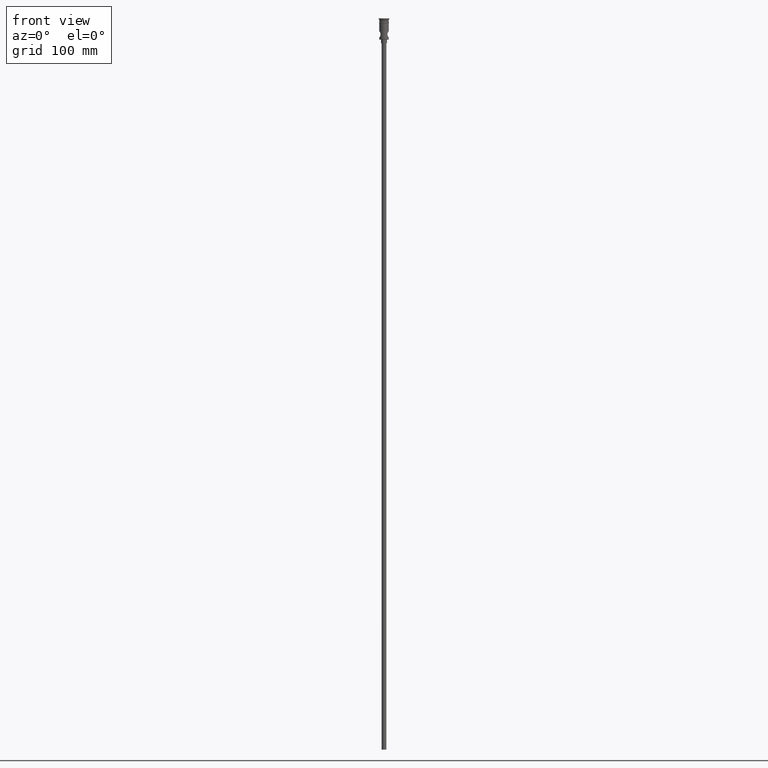
[diagram: clean part render]
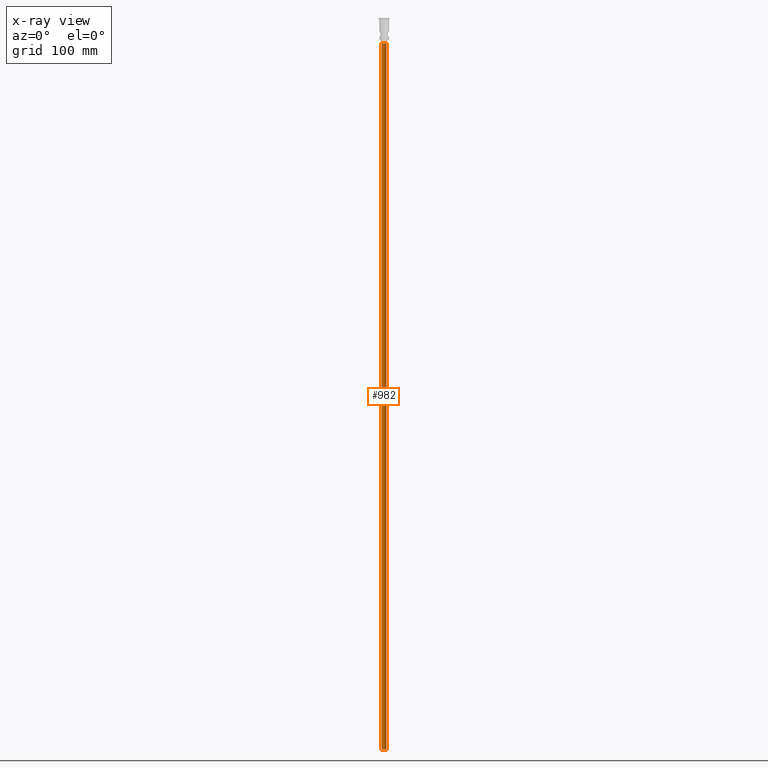
[diagram: x-ray — body ghosted, one internal face saturated and labeled with its STEP entity id]
A machine part, front view, then the same camera in x-ray: the body is ghosted and one INTERNAL B-rep face — a face not visible from any outside direction — is saturated and labeled: STEP entity #982.
In plain terms, the highlighted cylindrical surface (edge-blend (fillet) strip) has radius 2 mm, axis along (-0, -0, 1).
Its self-contained STEP definition (entity closure, byte-faithful):
#26 = LINE ( 'NONE', #352, #1029 ) ;
#47 = LINE ( 'NONE', #478, #167 ) ;
#67 = CARTESIAN_POINT ( 'NONE',  ( 2.000000000000000000, 0.000000000000000000, -618.0000000000000000 ) ) ;
#107 = ORIENTED_EDGE ( 'NONE', *, *, #710, .F. ) ;
#151 = VERTEX_POINT ( 'NONE', #661 ) ;
#167 = VECTOR ( 'NONE', #294, 1000.000000000000000 ) ;
#209 = EDGE_CURVE ( 'NONE', #938, #151, #715, .T. ) ;
#236 = VERTEX_POINT ( 'NONE', #630 ) ;
#275 = EDGE_CURVE ( 'NONE', #236, #938, #26, .T. ) ;
#282 = AXIS2_PLACEMENT_3D ( 'NONE', #764, #994, #1111 ) ;
#294 = DIRECTION ( 'NONE',  ( -0.000000000000000000, -0.000000000000000000, 1.000000000000000000 ) ) ;
#317 = CARTESIAN_POINT ( 'NONE',  ( 0.000000000000000000, 0.000000000000000000, -618.0000000000000000 ) ) ;
#352 = CARTESIAN_POINT ( 'NONE',  ( -2.000000000000000000, 2.449293598294706414E-16, -618.0000000000000000 ) ) ;
#391 = DIRECTION ( 'NONE',  ( -0.000000000000000000, -0.000000000000000000, 1.000000000000000000 ) ) ;
#395 = CARTESIAN_POINT ( 'NONE',  ( -2.000000000000000000, 2.449293598294706414E-16, -20.99999999999999645 ) ) ;
#468 = DIRECTION ( 'NONE',  ( -0.000000000000000000, -0.000000000000000000, 1.000000000000000000 ) ) ;
#478 = CARTESIAN_POINT ( 'NONE',  ( 2.000000000000000000, 0.000000000000000000, -618.0000000000000000 ) ) ;
#536 = DIRECTION ( 'NONE',  ( -1.000000000000000000, 0.000000000000000000, 0.000000000000000000 ) ) ;
#608 = CARTESIAN_POINT ( 'NONE',  ( 0.000000000000000000, 0.000000000000000000, -618.0000000000000000 ) ) ;
#630 = CARTESIAN_POINT ( 'NONE',  ( -2.000000000000000000, 2.449293598294706414E-16, -618.0000000000000000 ) ) ;
#661 = CARTESIAN_POINT ( 'NONE',  ( 2.000000000000000000, 0.000000000000000000, -20.99999999999999645 ) ) ;
#689 = EDGE_LOOP ( 'NONE', ( #107, #974, #711, #1215 ) ) ;
#710 = EDGE_CURVE ( 'NONE', #236, #871, #1334, .T. ) ;
#711 = ORIENTED_EDGE ( 'NONE', *, *, #209, .T. ) ;
#715 = CIRCLE ( 'NONE', #282, 2.000000000000000000 ) ;
#764 = CARTESIAN_POINT ( 'NONE',  ( 0.000000000000000000, 0.000000000000000000, -20.99999999999999645 ) ) ;
#822 = FACE_OUTER_BOUND ( 'NONE', #689, .T. ) ;
#871 = VERTEX_POINT ( 'NONE', #67 ) ;
#938 = VERTEX_POINT ( 'NONE', #395 ) ;
#974 = ORIENTED_EDGE ( 'NONE', *, *, #275, .T. ) ;
#982 = ADVANCED_FACE ( 'NONE', ( #822 ), #1163, .T. ) ;
#994 = DIRECTION ( 'NONE',  ( 0.000000000000000000, 0.000000000000000000, -1.000000000000000000 ) ) ;
#1029 = VECTOR ( 'NONE', #468, 1000.000000000000000 ) ;
#1092 = DIRECTION ( 'NONE',  ( 0.000000000000000000, 0.000000000000000000, -1.000000000000000000 ) ) ;
#1111 = DIRECTION ( 'NONE',  ( -1.000000000000000000, 0.000000000000000000, 0.000000000000000000 ) ) ;
#1163 = CYLINDRICAL_SURFACE ( 'NONE', #1165, 2.000000000000000000 ) ;
#1165 = AXIS2_PLACEMENT_3D ( 'NONE', #608, #391, #1433 ) ;
#1189 = EDGE_CURVE ( 'NONE', #871, #151, #47, .T. ) ;
#1215 = ORIENTED_EDGE ( 'NONE', *, *, #1189, .F. ) ;
#1327 = AXIS2_PLACEMENT_3D ( 'NONE', #317, #1092, #536 ) ;
#1334 = CIRCLE ( 'NONE', #1327, 2.000000000000000000 ) ;
#1433 = DIRECTION ( 'NONE',  ( 1.000000000000000000, 0.000000000000000000, 0.000000000000000000 ) ) ;